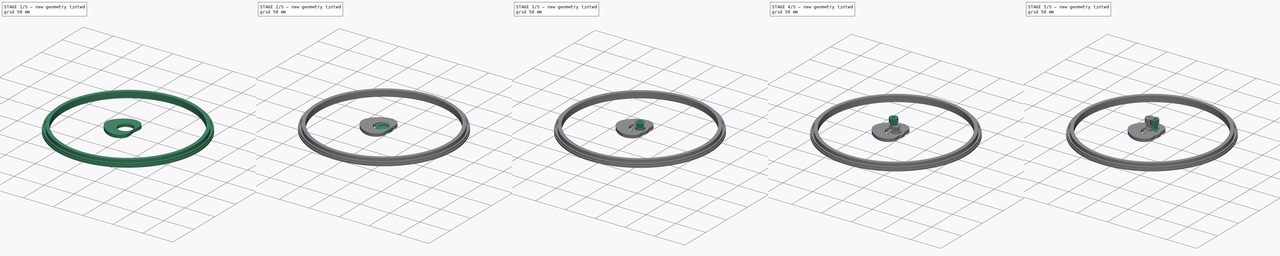
[diagram: build sequence overview — one tinted view per stage of 5, left to right]
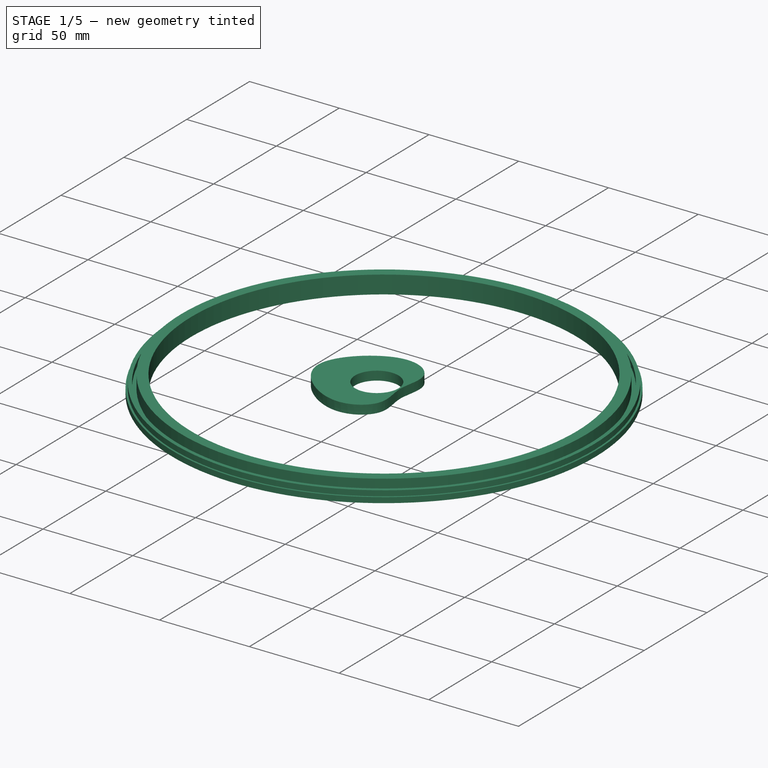
[diagram: stage 1 of 5 — iso view after this stage's code; geometry added in this stage tinted green]
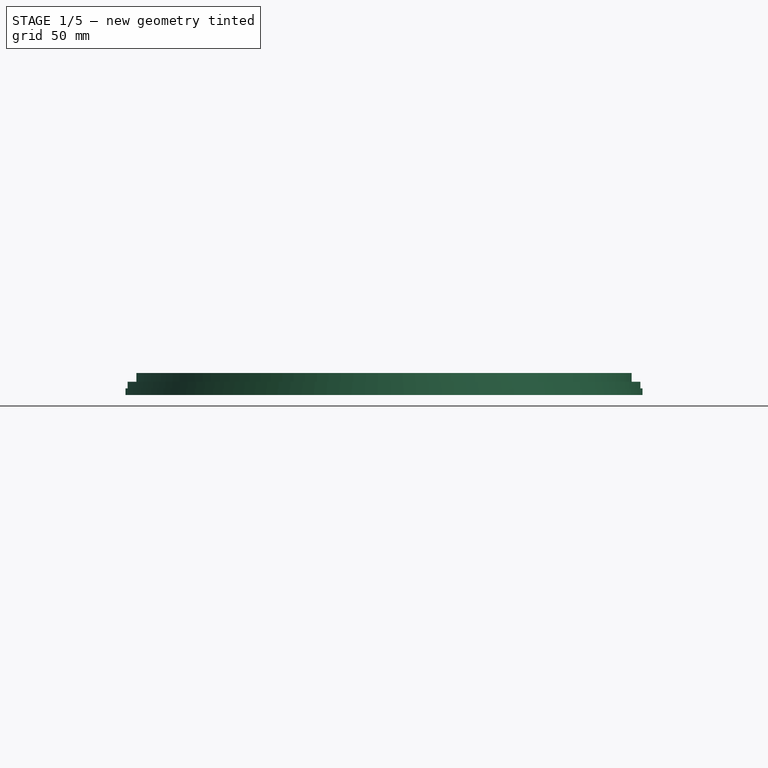
[diagram: stage 1 of 5 — front view after this stage's code; geometry added in this stage tinted green]
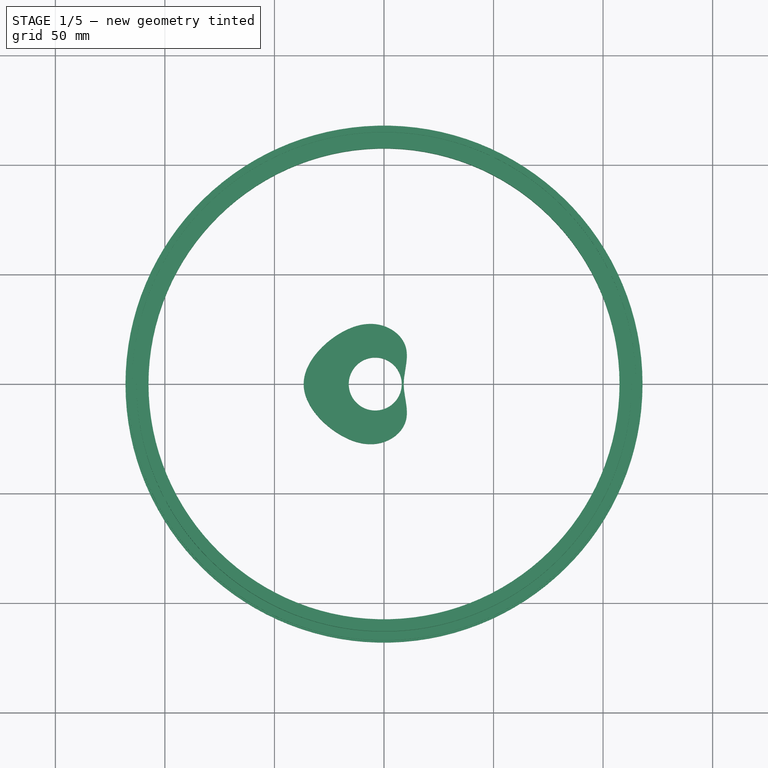
[diagram: stage 1 of 5 — top view after this stage's code; geometry added in this stage tinted green]
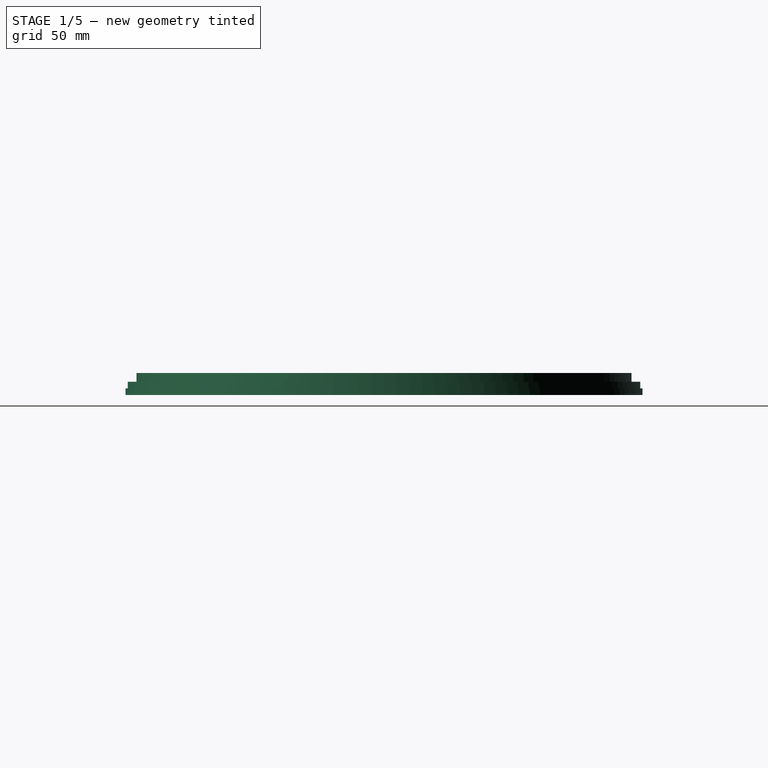
[diagram: stage 1 of 5 — right view after this stage's code; geometry added in this stage tinted green]
FCSTD DOCUMENT  (FreeCAD 0.19R)
Label: quad
License: All rights reserved
LicenseURL: http://en.wikipedia.org/wiki/All_rights_reserved
objects: Sketcher::SketchObject×26, PartDesign::Body×18, PartDesign::Pad×17, App::Part×7, PartDesign::Revolution×6, Part::Cut×6, PartDesign::Chamfer×4, PartDesign::FeatureBase×3, PartDesign::ShapeBinder×3, PartDesign::Pocket×2, PartDesign::FeaturePython×2, Part::FeaturePython×1, PartDesign::Hole×1
note: 119 computed .brp shape members not serialized (recipe doc carries the construction recipe); baked Part::Feature solids carry a one-line shape summary decoded from their .brp

FEATURE [PartDesign::Body] Body053  label="central_sep002"
  Group = -> [Pad057,Sketch075]
  Origin = -> Origin080
  Placement = pos=(0,0,-11.5) rot=(0,0,1;0rad)
  Tip = -> Pad057
FEATURE [Sketcher::SketchObject] Sketch076
  FullyConstrained = true
  MapMode = 5
  Support = -> [XY_Plane083]
  sketch-geometry (2):
    g0: Circle CenterX=0 CenterY=0 CenterZ=0 NormalX=0 NormalY=0 NormalZ=1 AngleXU=0 Radius=107.5
    g1: Circle CenterX=0 CenterY=0 CenterZ=0 NormalX=0 NormalY=0 NormalZ=1 AngleXU=0 Radius=118
  constraints (4):
    c: Coincident(g0,g-1)
    c: Diameter(g0) = 215  'dia_int'
    c: Coincident(g1,g0)
    c: Diameter(g1) = 236  'dia_ext'
FEATURE [Sketcher::SketchObject] Sketch077
  FullyConstrained = true
  MapMode = 5
  Support = -> [XY_Plane079]
  sketch-geometry (2):
    g0: Circle CenterX=0 CenterY=0 CenterZ=0 NormalX=0 NormalY=0 NormalZ=1 AngleXU=0 Radius=107.5
    g1: Circle CenterX=0 CenterY=0 CenterZ=0 NormalX=0 NormalY=0 NormalZ=1 AngleXU=0 Radius=113
  constraints (4):
    c: Coincident(g0,g-1)
    c: Diameter(g0) = 215  'dia_int'
    c: Coincident(g1,g0)
    c: Diameter(g1) = 226  'dia_ext'
FEATURE [PartDesign::Pad] Pad058  label="cyl_low009"
  Direction = (1,1,1)
  Length = 10
  Length2 = 100
  Profile = -> Sketch077
  Type = 0
FEATURE [PartDesign::Body] Body055  label="upper_rail002"
  Group = -> [Pad058,Sketch077]
  Origin = -> Origin078
  Placement = pos=(0,0,-28) rot=(0,0,1;0rad)
  Tip = -> Pad058
FEATURE [Sketcher::SketchObject] Sketch078
  FullyConstrained = true
  MapMode = 5
  Support = -> [XY_Plane082]
  sketch-geometry (2):
    g0: Circle CenterX=0 CenterY=0 CenterZ=0 NormalX=0 NormalY=0 NormalZ=1 AngleXU=0 Radius=115
    g1: Circle CenterX=0 CenterY=0 CenterZ=0 NormalX=0 NormalY=0 NormalZ=1 AngleXU=0 Radius=117
  constraints (4):
    c: Coincident(g0,g-1)
    c: Diameter(g0) = 230  'dia_int'
    c: Coincident(g1,g0)
    c: Diameter(g1) = 234  'dia_ext'
FEATURE [PartDesign::Pad] Pad059  label="cyl_low010"
  Direction = (1,1,1)
  Length = 6
  Length2 = 100
  Profile = -> Sketch078
  Type = 0
FEATURE [PartDesign::Body] Body052  label="lower_rail002"
  Group = -> [Pad059,Sketch078]
  Origin = -> Origin079
  Placement = pos=(0,0,-17) rot=(0,0,1;0rad)
  Tip = -> Pad059
FEATURE [PartDesign::Pad] Pad060  label="cyl_low011"
  Direction = (1,1,1)
  Length = 1.5
  Length2 = 100
  Profile = -> Sketch076
  Type = 0
FEATURE [PartDesign::Body] Body054  label="upper_sep002"
  Group = -> [Pad060,Sketch076]
  Origin = -> Origin081
  Placement = pos=(0,0,-18.5) rot=(0,0,1;0rad)
  Tip = -> Pad060
FEATURE [Sketcher::SketchObject] Sketch083
  FullyConstrained = true
  MapMode = 5
  Support = -> [XY_Plane084]
  sketch-geometry (2):
    g0: Circle CenterX=0 CenterY=0 CenterZ=0 NormalX=0 NormalY=0 NormalZ=1 AngleXU=0 Radius=107.5
    g1: Circle CenterX=0 CenterY=0 CenterZ=0 NormalX=0 NormalY=0 NormalZ=1 AngleXU=0 Radius=118
  constraints (4):
    c: Coincident(g0,g-1)
    c: Diameter(g0) = 215  'dia_int'
    c: Coincident(g1,g0)
    c: Diameter(g1) = 236  'dia_ext'
FEATURE [PartDesign::Pad] Pad062  label="cyl_low012"
  Direction = (1,1,1)
  Length = 3
  Length2 = 100
  Profile = -> Sketch083
  Type = 0
FEATURE [PartDesign::Body] Body057  label="upper_sep003"
  Group = -> [Pad062,Sketch083]
  Origin = -> Origin082
  Placement = pos=(0,0,-30) rot=(0,0,1;0rad)
  Tip = -> Pad062
FEATURE [App::Part] Part018  label="upper_base"
  Group = -> [Body055,Body053,Body054,Body052,Body057]
  Origin = -> Origin077
  Placement = pos=(123,0,0) rot=(1,0,0;3.14159rad)
FEATURE [PartDesign::ShapeBinder] CopyPad055
  Placement = pos=(0,0,5) rot=(0,0,1;0rad)
  TraceSupport = false
FEATURE [PartDesign::ShapeBinder] CopyPad056
  Placement = pos=(0,0,5) rot=(0,0,1;0rad)
  TraceSupport = false
FEATURE [Sketcher::SketchObject] Sketch085
  FullyConstrained = true
  MapMode = 5
  Placement = pos=(0,0,5) rot=(0,0,1;0rad)
  Support = -> [CopyPad056]
  sketch-geometry (12):
    g0-g5: Circle x6 (B-spline internal-alignment scaffolding for g6; pole/knot coordinates omitted)
    g6: BSplineCurve PolesCount=6 KnotsCount=7 Degree=3 IsPeriodic=1
    g7-g10: GeomPoint x4 (B-spline internal-alignment scaffolding for g6; pole/knot coordinates omitted)
    g11: Circle CenterX=-4 CenterY=0 CenterZ=0 NormalX=0 NormalY=0 NormalZ=1 AngleXU=0 Radius=12.1
  constraints (21):
    c: PointOnObject(g0,g-1)
    c: Weight(g0) = 1
    c: Equal(g0,g1)
    c: Equal(g0,g2)
    c: Equal(g0,g3)
    c: PointOnObject(g3,g-1)
    c: Equal(g0,g4)
    c: Equal(g0,g5)
    c: InternalAlignment(g0-g5 -> g6) x6
    c: InternalAlignment(g7-g10 -> g6) x4
    c: DistanceX(g0,g-1) = 50
    c: PointOnObject(g11,g-1)
    c: Radius(g11) = 12.1  'dia_int'
    c: DistanceX(g-1,g3) = 6
    c: Symmetric(g2,g4,g-1)
    c: DistanceX(g1,g2) = 25
    c: DistanceX(g0,g1) = 40
    c: Symmetric(g5,g1,g-1)
    c: DistanceY(g1,g0) = 35
    c: DistanceX(g11,g-1) = 4
    c: DistanceY(g2,g4) = 38
FEATURE [PartDesign::Pad] Pad063
  Direction = (1,1,1)
  Length = 5
  Length2 = 100
  Placement = pos=(0,0,5) rot=(0,0,1;0rad)
  Profile = -> Sketch085
  Type = 0
FEATURE [PartDesign::FeatureBase] BaseFeature001
  BaseFeature = -> Pad063
FEATURE [PartDesign::Body] Body  label="upper_pad"
  BaseFeature = -> Pad063
  Group = -> [BaseFeature001]
  Origin = -> Origin
  Placement = pos=(0,0,20) rot=(0,0,1;0rad)
  Tip = -> BaseFeature001
FEATURE [PartDesign::Body] PocketBody
  Origin = -> Origin084
FEATURE [PartDesign::Body] Body058
  Origin = -> Origin085
FEATURE [App::Part] Part
  Group = -> [PocketBody,Body058]
  Origin = -> Origin083
FEATURE [PartDesign::ShapeBinder] CopyPad057
  Placement = pos=(0,0,5) rot=(0,0,1;0rad)
  TraceSupport = false
FEATURE [Sketcher::SketchObject] Sketch086
  FullyConstrained = true
  MapMode = 5
  Placement = pos=(0,0,5) rot=(0,0,1;0rad)
  Support = -> [CopyPad057]
  sketch-geometry (12):
    g0-g5: Circle x6 (B-spline internal-alignment scaffolding for g6; pole/knot coordinates omitted)
    g6: BSplineCurve PolesCount=6 KnotsCount=7 Degree=3 IsPeriodic=1
    g7-g10: GeomPoint x4 (B-spline internal-alignment scaffolding for g6; pole/knot coordinates omitted)
    g11: Circle CenterX=-4 CenterY=0 CenterZ=0 NormalX=0 NormalY=0 NormalZ=1 AngleXU=0 Radius=12.1
  constraints (21):
    c: PointOnObject(g0,g-1)
    c: Weight(g0) = 1
    c: Equal(g0,g1)
    c: Equal(g0,g2)
    c: Equal(g0,g3)
    c: PointOnObject(g3,g-1)
    c: Equal(g0,g4)
    c: Equal(g0,g5)
    c: InternalAlignment(g0-g5 -> g6) x6
    c: InternalAlignment(g7-g10 -> g6) x4
    c: DistanceX(g0,g-1) = 50
    c: PointOnObject(g11,g-1)
    c: Radius(g11) = 12.1  'dia_int'
    c: DistanceX(g-1,g3) = 6
    c: Symmetric(g2,g4,g-1)
    c: DistanceX(g1,g2) = 25
    c: DistanceX(g0,g1) = 40
    c: Symmetric(g5,g1,g-1)
    c: DistanceY(g1,g0) = 35
    c: DistanceX(g11,g-1) = 4
    c: DistanceY(g2,g4) = 38
FEATURE [PartDesign::Pad] Pad064
  Direction = (1,1,1)
  Length = 5
  Length2 = 100
  Placement = pos=(0,0,5) rot=(0,0,1;0rad)
  Profile = -> Sketch086
  Type = 0
FEATURE [PartDesign::FeatureBase] BaseFeature002
  BaseFeature = -> Pad064
FEATURE [PartDesign::Body] Body059  label="lower_pad"
  BaseFeature = -> Pad064
  Group = -> [BaseFeature002]
  Origin = -> Origin086
  Placement = pos=(0,0,-25) rot=(0,0,1;0rad)
  Tip = -> BaseFeature002
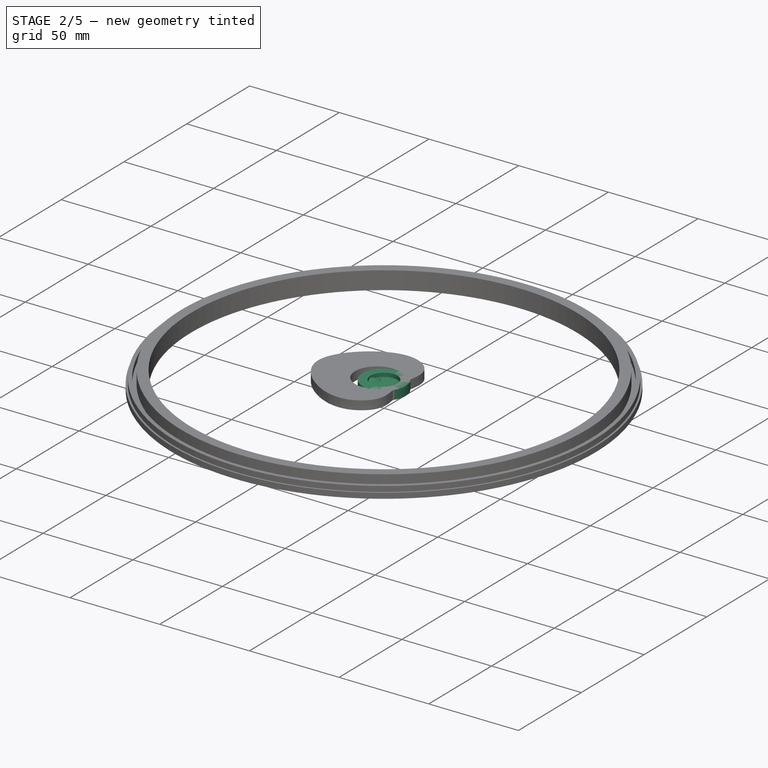
[diagram: stage 2 of 5 — iso view after this stage's code; geometry added in this stage tinted green]
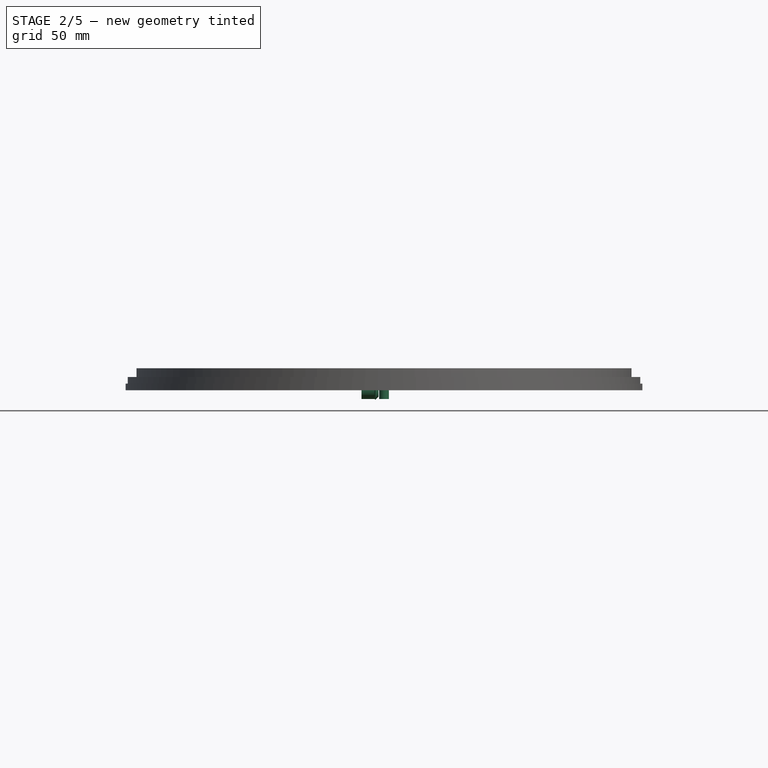
[diagram: stage 2 of 5 — front view after this stage's code; geometry added in this stage tinted green]
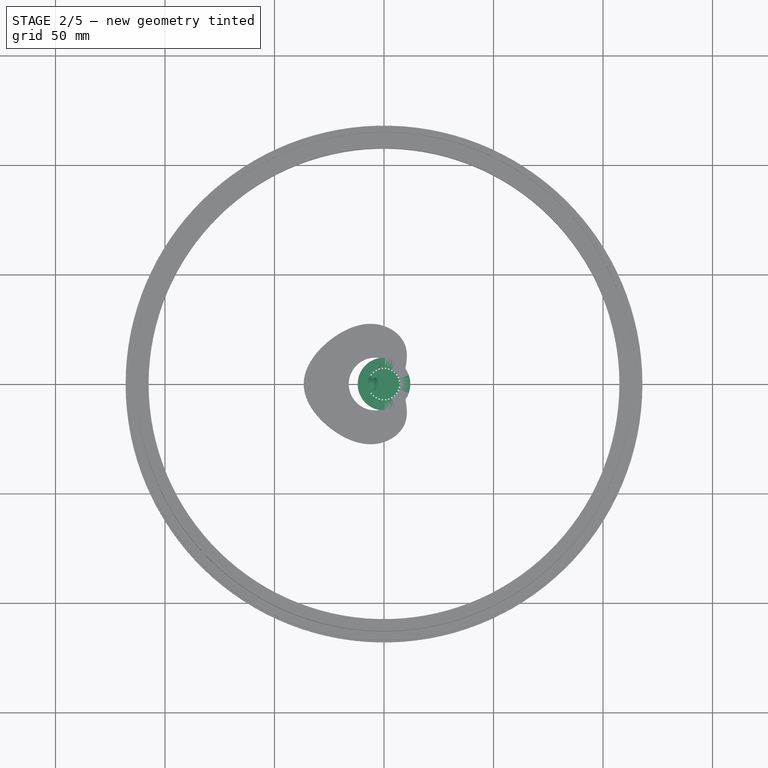
[diagram: stage 2 of 5 — top view after this stage's code; geometry added in this stage tinted green]
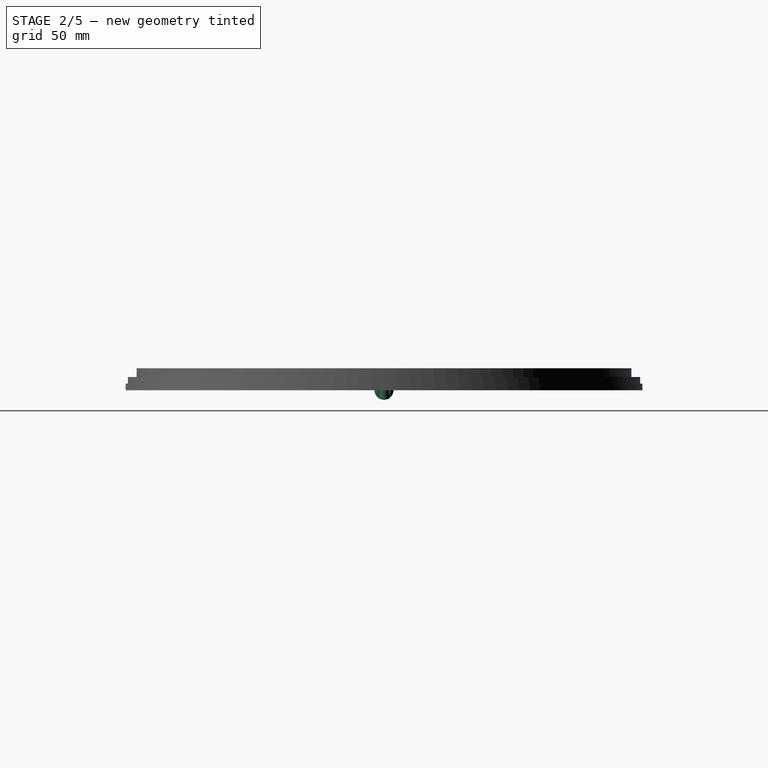
[diagram: stage 2 of 5 — right view after this stage's code; geometry added in this stage tinted green]
FEATURE [PartDesign::Body] Body046  label="bevel_x001"
  Group = -> [Sketch069,Revolution005]
  Origin = -> Origin069
  Tip = -> Revolution005
FEATURE [Sketcher::SketchObject] Sketch070
  FullyConstrained = true
  MapMode = 5
  Support = -> [XY_Plane071]
  sketch-geometry (7):
    g0: LineSegment StartX=-10.2642 StartY=4 StartZ=0 EndX=-4.26421 EndY=4 EndZ=0
    g1: LineSegment StartX=-4.26421 StartY=4 StartZ=0 EndX=-3.91421 EndY=4.35 EndZ=0
    g2: LineSegment StartX=-3.91421 StartY=4.35 StartZ=0 EndX=-2.5 EndY=2.93579 EndZ=0
    g3: LineSegment StartX=-2.5 StartY=2.93579 StartZ=0 EndX=-2.85 EndY=2.58579 EndZ=0
    g4: LineSegment StartX=-2.85 StartY=2.58579 StartZ=0 EndX=-2.85 EndY=1.5 EndZ=0
    g5: LineSegment StartX=-2.85 StartY=1.5 StartZ=0 EndX=-10.2642 EndY=1.5 EndZ=0
    g6: LineSegment StartX=-10.2642 StartY=1.5 StartZ=0 EndX=-10.2642 EndY=4 EndZ=0
  constraints (21):
    c: Horizontal(g0)
    c: Coincident(g0,g1)
    c: Coincident(g1,g2)
    c: Coincident(g2,g3)
    c: Coincident(g3,g4)
    c: Vertical(g4)
    c: Coincident(g4,g5)
    c: Horizontal(g5)
    c: Coincident(g5,g6)
    c: Coincident(g6,g0)
    c: Vertical(g6)
    c: DistanceX(g0,g0) = 6  'Lm'
    c: Parallel(g3,g1)
    c: Distance(g2) = 2  'F'
    c: Angle(g1,g0) = 2.35619
    c: DistanceY(g-1,g4) = 1.5  'bore'
    c: DistanceY(g-1,g0) = 4  'rm'
    c: DistanceY(g-1,g1) = 4.35
    c: Perpendicular(g1,g2)
    c: DistanceX(g2,g-1) = 2.5
    c: Equal(g3,g1)
FEATURE [PartDesign::Revolution] Revolution006
  Angle = 360
  Axis = (1,0,0)
  Base = (0,0,0)
  Profile = -> Sketch070
  ReferenceAxis = -> X_Axis070
FEATURE [PartDesign::Body] Body047  label="bevel_z001"
  Group = -> [Sketch070,Revolution006]
  Origin = -> Origin070
  Placement = pos=(0,0,0) rot=(0,0,1;1.5708rad)
  Tip = -> Revolution006
FEATURE [App::Part] Part016  label="bevel_gears001"
  Group = -> [Body046,Body047]
  Origin = -> Origin067
  Placement = pos=(-14.5,0,0) rot=(1,0,0;-1.5708rad)
FEATURE [PartDesign::FeaturePython] InvoluteGear002  # WARN: FeaturePython — macro-defined, semantics opaque (R4)
  AttacherType = Attacher::AttachEngine3D
  Placement = pos=(0,0,0) rot=(0,0,1;0.10472rad)
  angular_backlash = 0
  backlash = 0
  beta = 0
  clearance = 0.25
  da = 16
  df = 13.75
  double_helix = false
  dw = 15
  head = 0
  head_fillet = 0
  height = 3
  module = 0.5
  numpoints = 6
  pressure_angle = 20
  properties_from_tool = false
  reversed_backlash = false
  root_fillet = 0
  shift = 0
  simple = false
  teeth = 30
  transverse_pitch = 1.5708
  undercut = false
  version = 0.0.4
  expr: dw = teeth * module
  expr: angular_backlash = backlash / dw * 360° / pi
FEATURE [PartDesign::Body] Body049  label="gear_30teeths"
  Group = -> [InvoluteGear002]
  Origin = -> Origin072
  Placement = pos=(-14.5,0,7) rot=(0,0,1;0rad)
  Tip = -> InvoluteGear002
FEATURE [App::Part] Part017  label="transmission_altitude"
  Group = -> [Part016,Sketch064,Revolution004,Sketch065,Pocket001,Sketch066,Pad051,Cut003,Sketch067,Pad052,Cut004,Chamfer002,Chamfer003,Sketch068,Pad053,Cut005,Body049]
  Origin = -> Origin068
  Placement = pos=(0,0,0) rot=(1,0,0;3.14159rad)
FEATURE [Sketcher::SketchObject] Sketch073
  FullyConstrained = true
  MapMode = 5
  Support = -> [XY_Plane075]
  sketch-geometry (2):
    g0: Circle CenterX=0 CenterY=0 CenterZ=0 NormalX=0 NormalY=0 NormalZ=1 AngleXU=0 Radius=12
    g1: Circle CenterX=0 CenterY=0 CenterZ=0 NormalX=0 NormalY=0 NormalZ=1 AngleXU=0 Radius=7.5
  constraints (4):
    c: Coincident(g0,g-1)
    c: Coincident(g1,g0)
    c: Diameter(g1) = 15  'dia_int·'
    c: Diameter(g0) = 24  'dia_ext'
FEATURE [PartDesign::Pad] Pad055
  Direction = (1,1,1)
  Length = 5
  Length2 = 100
  Profile = -> Sketch073
  Type = 0
FEATURE [PartDesign::Body] Body050  label="roulement_15_24_5"
  Group = -> [Sketch073,Pad055]
  Origin = -> Origin073
  Placement = pos=(-4,0,20.1) rot=(0,0,1;0rad)
  Tip = -> Pad055
FEATURE [Part::FeaturePython] InvoluteGear  # WARN: FeaturePython — macro-defined, semantics opaque (R4)
  AttacherType = Attacher::AttachEngine3D
  angular_backlash = 0
  backlash = 0
  beta = 0
  clearance = 0.25
  da = 7
  df = 4.75
  double_helix = false
  dw = 6
  head = 0
  head_fillet = 0
  height = 3
  module = 0.5
  numpoints = 6
  pressure_angle = 20
  properties_from_tool = false
  reversed_backlash = false
  root_fillet = 0
  shift = 0
  simple = false
  teeth = 12
  transverse_pitch = 1.5708
  undercut = false
  version = 0.0.4
  expr: dw = teeth * module
  expr: angular_backlash = backlash / dw * 360° / pi
FEATURE [PartDesign::FeatureBase] BaseFeature
  BaseFeature = -> InvoluteGear
FEATURE [Sketcher::SketchObject] Sketch071
  FullyConstrained = true
  MapMode = 5
  Placement = pos=(0,0,3) rot=(0,0,1;0rad)
  Support = -> [BaseFeature]
  sketch-geometry (1):
    g0: Circle CenterX=0 CenterY=0 CenterZ=0 NormalX=0 NormalY=0 NormalZ=1 AngleXU=0 Radius=2.25
  constraints (2):
    c: Coincident(g0,g-1)
    c: Diameter(g0) = 4.5  'phi_hub'
FEATURE [PartDesign::Pad] Pad054
  BaseFeature = -> BaseFeature
  Direction = (1,1,1)
  Length = 7
  Length2 = 100
  Profile = -> Sketch071
  Reversed = true
  Type = 0
FEATURE [Sketcher::SketchObject] Sketch072
  FullyConstrained = true
  MapMode = 5
  Placement = pos=(0,0,3) rot=(0,0,1;0rad)
  Support = -> [Pad054]
  sketch-geometry (1):
    g0: Circle CenterX=0 CenterY=0 CenterZ=0 NormalX=0 NormalY=0 NormalZ=1 AngleXU=0 Radius=1
  constraints (2):
    c: Coincident(g0,g-1)
    c: Diameter(g0) = 2
FEATURE [PartDesign::Hole] Hole
  BaseFeature = -> Pad054
  Depth = 25
  DepthType = 1
  Diameter = 2
  DrillForDepth = false
  DrillPoint = 0
  DrillPointAngle = 118
  HoleCutCountersinkAngle = 90
  HoleCutCustomValues = false
  HoleCutDepth = 0
  HoleCutDiameter = 6.1
  HoleCutType = 0
  ModelActualThread = false
  Profile = -> Sketch072
  Tapered = false
  TaperedAngle = 90
  ThreadAngle = 0
  ThreadClass = 0
  ThreadCutOffInner = 0
  ThreadCutOffOuter = 0
  ThreadDirection = 0
  ThreadFit = 0
  ThreadPitch = 0
  ThreadSize = 0
  ThreadType = 0
  Threaded = false
FEATURE [PartDesign::FeaturePython] InvoluteGear001  # WARN: FeaturePython — macro-defined, semantics opaque (R4)
  AttacherType = Attacher::AttachEngine3D
  BaseFeature = -> Hole
  angular_backlash = 0
  backlash = 0
  beta = 0
  clearance = 0.25
  da = 7
  df = 4.75
  double_helix = false
  dw = 6
  head = 0
  head_fillet = 0
  height = 3
  module = 0.5
  numpoints = 6
  pressure_angle = 20
  properties_from_tool = false
  reversed_backlash = false
  root_fillet = 0
  shift = 0
  simple = false
  teeth = 12
  transverse_pitch = 1.5708
  undercut = false
  version = 0.0.4
  expr: dw = teeth * module
  expr: angular_backlash = backlash / dw * 360° / pi
FEATURE [PartDesign::Body] Body048  label="gear_12_teeth_M05"
  BaseFeature = -> InvoluteGear
  Group = -> [BaseFeature,Sketch071,Pad054,Sketch072,Hole,InvoluteGear001]
  Origin = -> Origin071
  Placement = pos=(-4,0,-10) rot=(0,0,1;0rad)
  Tip = -> InvoluteGear001
FEATURE [App::Part] Part015  label="quad"
  Group = -> [Part010,Body045,Body044,Part017,InvoluteGear,Body048,Body050]
  Origin = -> Origin066
FEATURE [Sketcher::SketchObject] Sketch075
  FullyConstrained = true
  MapMode = 5
  Support = -> [XY_Plane080]
  sketch-geometry (2):
    g0: Circle CenterX=0 CenterY=0 CenterZ=0 NormalX=0 NormalY=0 NormalZ=1 AngleXU=0 Radius=115
    g1: Circle CenterX=0 CenterY=0 CenterZ=0 NormalX=0 NormalY=0 NormalZ=1 AngleXU=0 Radius=118
  constraints (4):
    c: Coincident(g0,g-1)
    c: Diameter(g0) = 230  'dia_int'
    c: Coincident(g1,g0)
    c: Diameter(g1) = 236  'dia_ext'
FEATURE [PartDesign::Pad] Pad057  label="cyl_low008"
  Direction = (1,1,1)
  Length = 1.5
  Length2 = 100
  Profile = -> Sketch075
  Type = 0
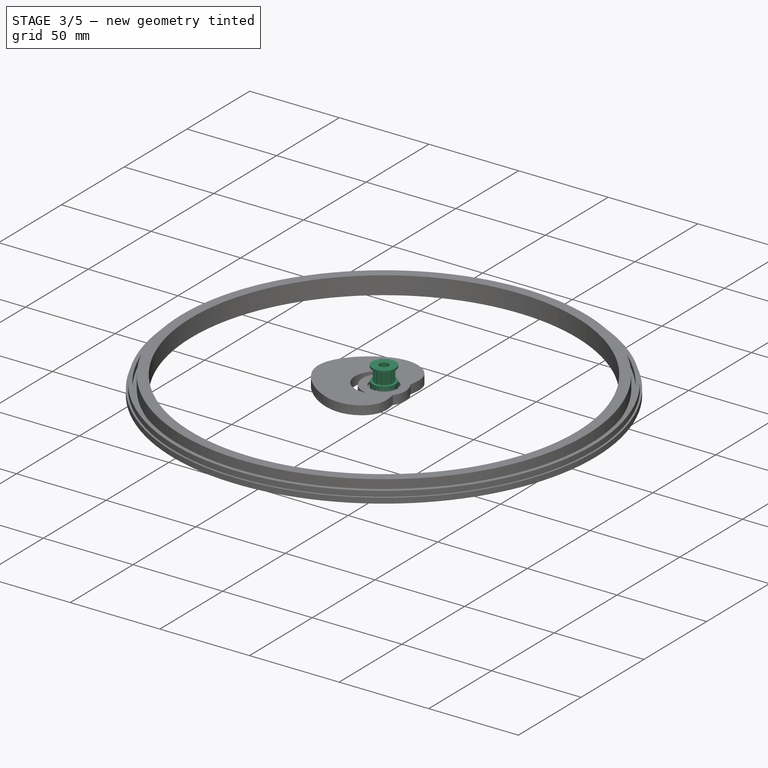
[diagram: stage 3 of 5 — iso view after this stage's code; geometry added in this stage tinted green]
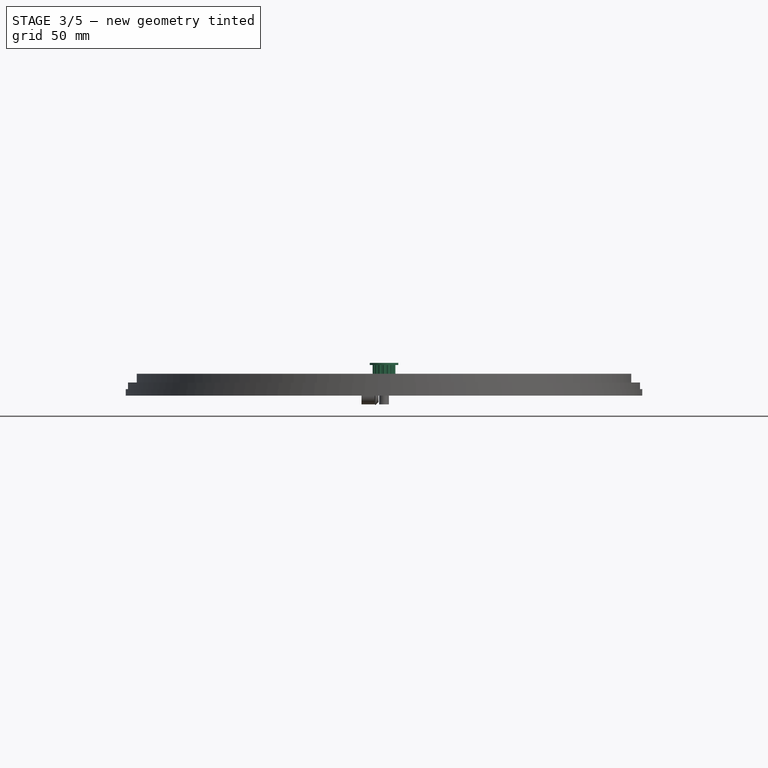
[diagram: stage 3 of 5 — front view after this stage's code; geometry added in this stage tinted green]
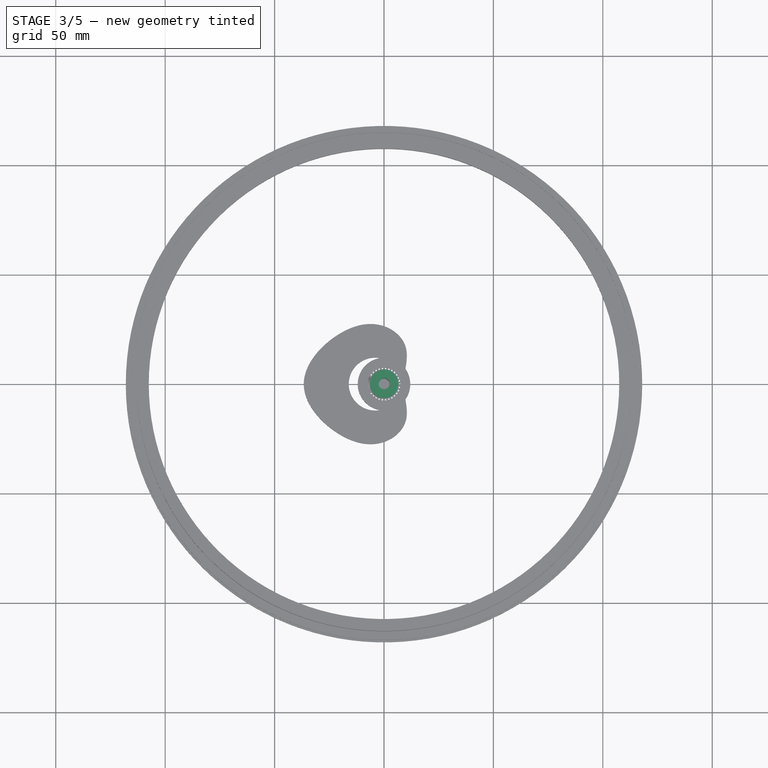
[diagram: stage 3 of 5 — top view after this stage's code; geometry added in this stage tinted green]
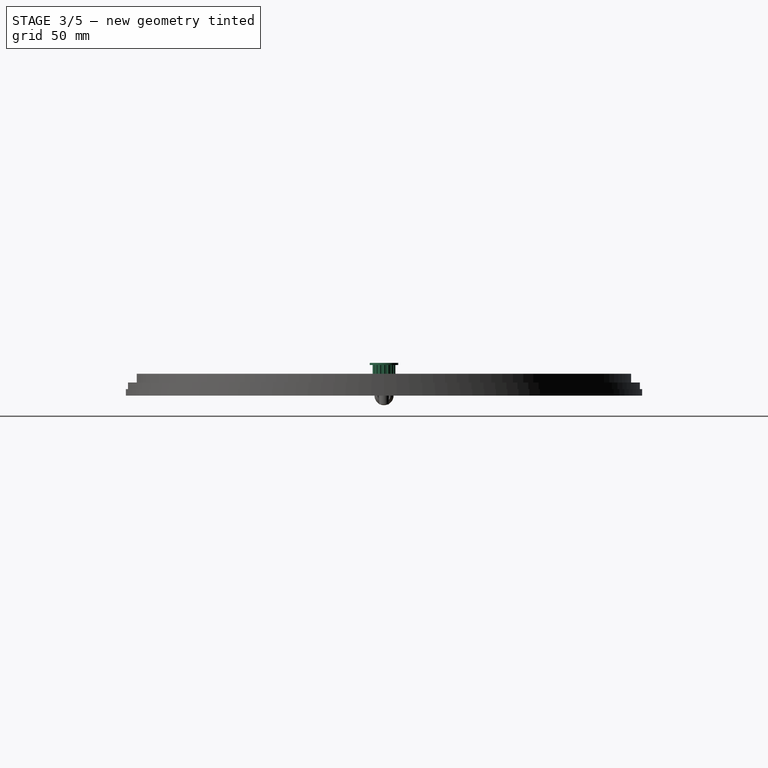
[diagram: stage 3 of 5 — right view after this stage's code; geometry added in this stage tinted green]
FEATURE [PartDesign::Body] Body005  label="bevel_z"
  Group = -> [Sketch007,Revolution003]
  Origin = -> Origin007
  Placement = pos=(0,0,0) rot=(0,0,1;1.5708rad)
  Tip = -> Revolution003
FEATURE [App::Part] Part009  label="bevel_gears"
  Group = -> [Body004,Body005]
  Origin = -> Origin056
  Placement = pos=(4,0,0) rot=(1,0,0;-1.5708rad)
FEATURE [App::Part] Part010  label="transmission_latitude"
  Group = -> [Part009,Sketch062,Revolution,Sketch001,Pocket,Sketch002,Pad049,Cut,Sketch003,Pad001,Cut001,Chamfer,Chamfer001,Sketch004,Pad002,Cut002]
  Origin = -> Origin057
  Placement = pos=(0,0,0) rot=(0,0,1;3.14159rad)
FEATURE [Sketcher::SketchObject] Sketch064
  FullyConstrained = false
  MapMode = 5
  Placement = pos=(0,0,0) rot=(1,0,0;1.5708rad)
  sketch-geometry (8):
    g0: LineSegment StartX=0 StartY=0 StartZ=0 EndX=6.5 EndY=0 EndZ=0
    g1: LineSegment StartX=6.5 StartY=0 StartZ=0 EndX=6.5 EndY=7 EndZ=0
    g2: LineSegment StartX=4.7 StartY=14 StartZ=0 EndX=4.7 EndY=7 EndZ=0
    g3: LineSegment StartX=4.7 StartY=7 StartZ=0 EndX=6.5 EndY=7 EndZ=0
    g4: LineSegment StartX=0 StartY=15 StartZ=0 EndX=6.5 EndY=15 EndZ=0
    g5: LineSegment StartX=6.5 StartY=15 StartZ=0 EndX=6.5 EndY=14 EndZ=0
    g6: LineSegment StartX=6.5 StartY=14 StartZ=0 EndX=4.7 EndY=14 EndZ=0
    g7: LineSegment StartX=0 StartY=15 StartZ=0 EndX=0 EndY=0 EndZ=0
  constraints (15):
    c: PointOnObject(g0,g-1)
    c: Horizontal(g0)
    c: Coincident(g1,g0)
    c: Vertical(g1)
    c: Vertical(g2)
    c: Coincident(g3,g2)
    c: Coincident(g3,g1)
    c: Horizontal(g4)
    c: Coincident(g4,g5)
    c: Vertical(g5)
    c: Coincident(g5,g6)
    c: Horizontal(g6)
    c: Vertical(g7)
    c: PointOnObject(g7,g4)
    c: Coincident(g4,g7)
FEATURE [PartDesign::Revolution] Revolution004
  AllowMultiFace = false
  Angle = 360
  Axis = (0,0,1)
  Base = (0,0,0)
  Placement = pos=(0,0,0) rot=(1,0,0;1.5708rad)
  Profile = -> Sketch064
  ReferenceAxis = -> Sketch064 [V_Axis]
  Reversed = true
FEATURE [Sketcher::SketchObject] Sketch065
  FullyConstrained = false
  MapMode = 5
  Placement = pos=(0,3.3e-15,15) rot=(0,0,1;3.14159rad)
  Support = -> [Revolution004]
  sketch-geometry (1):
    g0: Circle CenterX=0 CenterY=0 CenterZ=0 NormalX=0 NormalY=0 NormalZ=1 AngleXU=0 Radius=2.5
  constraints (2):
    c: Coincident(g0,g-1)
    c: Radius(g0) = 2.5
FEATURE [PartDesign::Pocket] Pocket001
  AllowMultiFace = false
  Length = 15
  Length2 = 100
  Placement = pos=(0,0,0) rot=(1,0,0;1.5708rad)
  Profile = -> Sketch065
  Type = 0
FEATURE [Sketcher::SketchObject] Sketch066
  FullyConstrained = false
  MapMode = 5
  Placement = pos=(0,-7,3.5) rot=(1,0,0;1.5708rad)
  sketch-geometry (1):
    g0: Circle CenterX=0 CenterY=0 CenterZ=0 NormalX=0 NormalY=0 NormalZ=1 AngleXU=0 Radius=1.5
  constraints (2):
    c: Coincident(g0,g-1)
    c: Radius(g0) = 1.5
FEATURE [PartDesign::Pad] Pad051
  AllowMultiFace = false
  Direction = (1,1,1)
  Length = 8
  Length2 = 100
  Placement = pos=(0,-7,3.5) rot=(1,0,0;1.5708rad)
  Profile = -> Sketch066
  Reversed = true
  Type = 0
FEATURE [Part::Cut] Cut003
  Base = -> Pocket001
  Tool = -> Pad051
FEATURE [Sketcher::SketchObject] Sketch067
  FullyConstrained = false
  MapMode = 5
  Placement = pos=(7,0,3.5) rot=(0.57735,0.57735,0.57735;2.0944rad)
  sketch-geometry (1):
    g0: Circle CenterX=0 CenterY=0 CenterZ=0 NormalX=0 NormalY=0 NormalZ=1 AngleXU=0 Radius=1.5
  constraints (2):
    c: Coincident(g0,g-1)
    c: Radius(g0) = 1.5
FEATURE [PartDesign::Pad] Pad052
  AllowMultiFace = false
  Direction = (1,1,1)
  Length = 8
  Length2 = 100
  Placement = pos=(7,0,3.5) rot=(0.57735,0.57735,0.57735;2.0944rad)
  Profile = -> Sketch067
  Reversed = true
  Type = 0
FEATURE [Part::Cut] Cut004
  Base = -> Cut003
  Tool = -> Pad052
FEATURE [Sketcher::SketchObject] Sketch068
  FullyConstrained = false
  MapMode = 5
  Placement = pos=(0,0,14) rot=(0,0,1;0rad)
  sketch-geometry (16):
    g0: Circle CenterX=0 CenterY=4.7 CenterZ=0 NormalX=0 NormalY=0 NormalZ=1 AngleXU=0 Radius=0.5
    g1: Circle CenterX=0 CenterY=-4.7 CenterZ=0 NormalX=0 NormalY=0 NormalZ=1 AngleXU=0 Radius=0.5
    g2: Circle CenterX=4.7 CenterY=0 CenterZ=0 NormalX=0 NormalY=0 NormalZ=1 AngleXU=0 Radius=0.5
    g3: Circle CenterX=-4.7 CenterY=0 CenterZ=0 NormalX=0 NormalY=0 NormalZ=1 AngleXU=0 Radius=0.5
    g4: Circle CenterX=-3.3234 CenterY=3.3234 CenterZ=0 NormalX=0 NormalY=0 NormalZ=1 AngleXU=0 Radius=0.5
    g5: Circle CenterX=3.3234 CenterY=3.3234 CenterZ=0 NormalX=0 NormalY=0 NormalZ=1 AngleXU=0 Radius=0.5
    g6: Circle CenterX=-3.3234 CenterY=-3.3234 CenterZ=0 NormalX=0 NormalY=0 NormalZ=1 AngleXU=0 Radius=0.5
    g7: Circle CenterX=3.3234 CenterY=-3.3234 CenterZ=0 NormalX=0 NormalY=0 NormalZ=1 AngleXU=0 Radius=0.5
    g8: Circle CenterX=-1.79861 CenterY=4.34223 CenterZ=0 NormalX=0 NormalY=0 NormalZ=1 AngleXU=0 Radius=0.5
    g9: Circle CenterX=1.79861 CenterY=4.34223 CenterZ=0 NormalX=0 NormalY=0 NormalZ=1 AngleXU=0 Radius=0.5
    g10: Circle CenterX=4.34223 CenterY=1.79861 CenterZ=0 NormalX=0 NormalY=0 NormalZ=1 AngleXU=0 Radius=0.5
    g11: Circle CenterX=4.34223 CenterY=-1.79861 CenterZ=0 NormalX=0 NormalY=0 NormalZ=1 AngleXU=0 Radius=0.5
    g12: Circle CenterX=1.79861 CenterY=-4.34223 CenterZ=0 NormalX=0 NormalY=0 NormalZ=1 AngleXU=0 Radius=0.5
    g13: Circle CenterX=-1.79861 CenterY=-4.34223 CenterZ=0 NormalX=0 NormalY=0 NormalZ=1 AngleXU=0 Radius=0.5
    g14: Circle CenterX=-4.34223 CenterY=-1.79861 CenterZ=0 NormalX=0 NormalY=0 NormalZ=1 AngleXU=0 Radius=0.5
    g15: Circle CenterX=-4.31471 CenterY=1.86367 CenterZ=0 NormalX=0 NormalY=0 NormalZ=1 AngleXU=0 Radius=0.5
  constraints (16):
    c: Radius(g0) = 0.5
    c: Equal(g0,g8)
    c: Equal(g8,g4)
    c: Equal(g4,g15)
    c: Equal(g15,g3)
    c: Equal(g3,g14)
    c: Equal(g14,g6)
    c: Equal(g6,g13)
    c: Equal(g13,g1)
    c: Equal(g1,g12)
    c: Equal(g12,g7)
    c: Equal(g7,g11)
    c: Equal(g11,g2)
    c: Equal(g2,g10)
    c: Equal(g10,g5)
    c: Equal(g5,g9)
FEATURE [PartDesign::Pad] Pad053
  AllowMultiFace = false
  Direction = (1,1,1)
  Length = 7
  Length2 = 100
  Placement = pos=(0,0,14) rot=(0,0,1;0rad)
  Profile = -> Sketch068
  Reversed = true
  Type = 0
FEATURE [Sketcher::SketchObject] Sketch069
  FullyConstrained = true
  MapMode = 5
  Support = -> [XY_Plane072]
  sketch-geometry (7):
    g0: LineSegment StartX=-10.2642 StartY=4 StartZ=0 EndX=-4.26421 EndY=4 EndZ=0
    g1: LineSegment StartX=-4.26421 StartY=4 StartZ=0 EndX=-3.91421 EndY=4.35 EndZ=0
    g2: LineSegment StartX=-3.91421 StartY=4.35 StartZ=0 EndX=-2.5 EndY=2.93579 EndZ=0
    g3: LineSegment StartX=-2.5 StartY=2.93579 StartZ=0 EndX=-2.85 EndY=2.58579 EndZ=0
    g4: LineSegment StartX=-2.85 StartY=2.58579 StartZ=0 EndX=-2.85 EndY=1.5 EndZ=0
    g5: LineSegment StartX=-2.85 StartY=1.5 StartZ=0 EndX=-10.2642 EndY=1.5 EndZ=0
    g6: LineSegment StartX=-10.2642 StartY=1.5 StartZ=0 EndX=-10.2642 EndY=4 EndZ=0
  constraints (21):
    c: Horizontal(g0)
    c: Coincident(g0,g1)
    c: Coincident(g1,g2)
    c: Coincident(g2,g3)
    c: Coincident(g3,g4)
    c: Vertical(g4)
    c: Coincident(g4,g5)
    c: Horizontal(g5)
    c: Coincident(g5,g6)
    c: Coincident(g6,g0)
    c: Vertical(g6)
    c: DistanceX(g0,g0) = 6  'Lm'
    c: Parallel(g3,g1)
    c: Distance(g2) = 2  'F'
    c: Angle(g1,g0) = 2.35619
    c: DistanceY(g-1,g4) = 1.5  'bore'
    c: DistanceY(g-1,g0) = 4  'rm'
    c: DistanceY(g-1,g1) = 4.35
    c: Perpendicular(g1,g2)
    c: DistanceX(g2,g-1) = 2.5
    c: Equal(g3,g1)
FEATURE [PartDesign::Revolution] Revolution005
  Angle = 360
  Axis = (1,0,0)
  Base = (0,0,0)
  Profile = -> Sketch069
  ReferenceAxis = -> X_Axis069
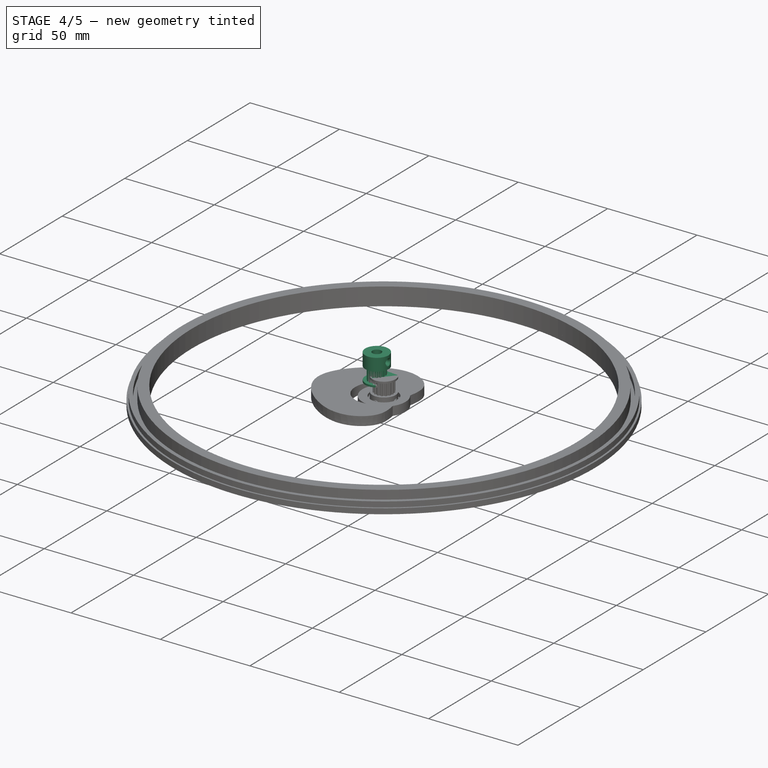
[diagram: stage 4 of 5 — iso view after this stage's code; geometry added in this stage tinted green]
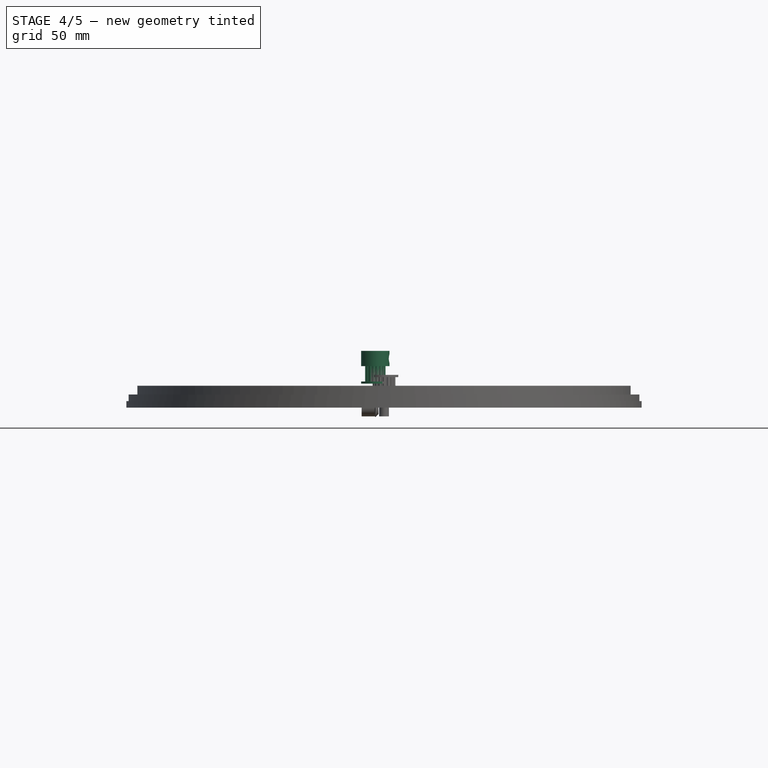
[diagram: stage 4 of 5 — front view after this stage's code; geometry added in this stage tinted green]
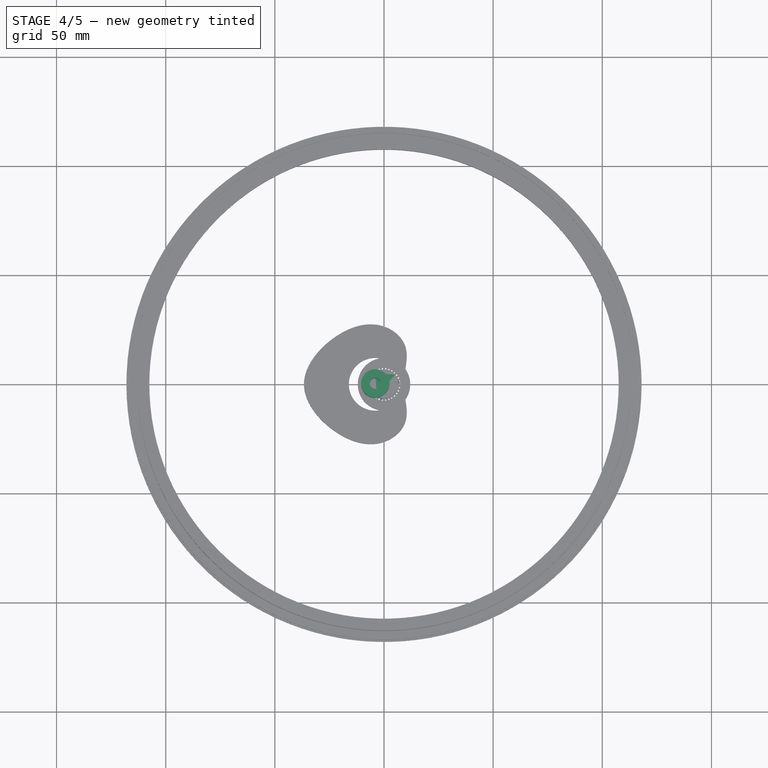
[diagram: stage 4 of 5 — top view after this stage's code; geometry added in this stage tinted green]
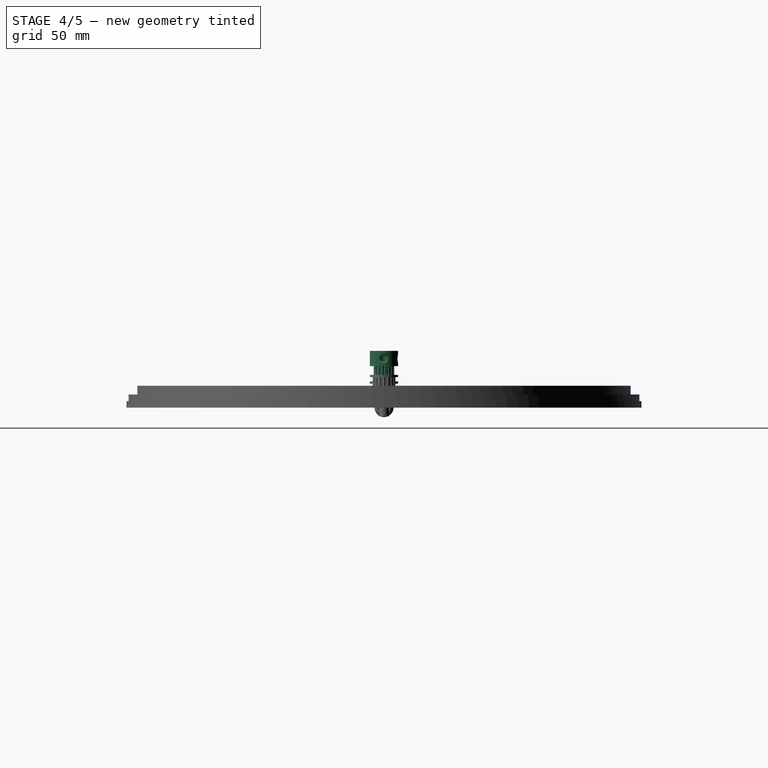
[diagram: stage 4 of 5 — right view after this stage's code; geometry added in this stage tinted green]
FEATURE [PartDesign::Body] Body045  label="rear_wheel"
  Group = -> [Sketch060,Pad047]
  Origin = -> Origin052
  Placement = pos=(4,-14,13.5) rot=(0,0,1;0rad)
  Tip = -> Pad047
FEATURE [Sketcher::SketchObject] Sketch062
  FullyConstrained = false
  MapMode = 5
  Placement = pos=(0,0,0) rot=(1,0,0;1.5708rad)
  sketch-geometry (8):
    g0: LineSegment StartX=0 StartY=0 StartZ=0 EndX=6.5 EndY=0 EndZ=0
    g1: LineSegment StartX=6.5 StartY=0 StartZ=0 EndX=6.5 EndY=7 EndZ=0
    g2: LineSegment StartX=4.7 StartY=14 StartZ=0 EndX=4.7 EndY=7 EndZ=0
    g3: LineSegment StartX=4.7 StartY=7 StartZ=0 EndX=6.5 EndY=7 EndZ=0
    g4: LineSegment StartX=0 StartY=15 StartZ=0 EndX=6.5 EndY=15 EndZ=0
    g5: LineSegment StartX=6.5 StartY=15 StartZ=0 EndX=6.5 EndY=14 EndZ=0
    g6: LineSegment StartX=6.5 StartY=14 StartZ=0 EndX=4.7 EndY=14 EndZ=0
    g7: LineSegment StartX=0 StartY=15 StartZ=0 EndX=0 EndY=0 EndZ=0
  constraints (15):
    c: PointOnObject(g0,g-1)
    c: Horizontal(g0)
    c: Coincident(g1,g0)
    c: Vertical(g1)
    c: Vertical(g2)
    c: Coincident(g3,g2)
    c: Coincident(g3,g1)
    c: Horizontal(g4)
    c: Coincident(g4,g5)
    c: Vertical(g5)
    c: Coincident(g5,g6)
    c: Horizontal(g6)
    c: Vertical(g7)
    c: PointOnObject(g7,g4)
    c: Coincident(g4,g7)
FEATURE [PartDesign::Revolution] Revolution
  AllowMultiFace = false
  Angle = 360
  Axis = (0,0,1)
  Base = (0,0,0)
  Placement = pos=(0,0,0) rot=(1,0,0;1.5708rad)
  Profile = -> Sketch062
  ReferenceAxis = -> Sketch062 [V_Axis]
  Reversed = true
FEATURE [Sketcher::SketchObject] Sketch002
  FullyConstrained = false
  MapMode = 5
  Placement = pos=(0,-7,3.5) rot=(1,0,0;1.5708rad)
  sketch-geometry (1):
    g0: Circle CenterX=0 CenterY=0 CenterZ=0 NormalX=0 NormalY=0 NormalZ=1 AngleXU=0 Radius=1.5
  constraints (2):
    c: Coincident(g0,g-1)
    c: Radius(g0) = 1.5
FEATURE [PartDesign::Pad] Pad049
  AllowMultiFace = false
  Direction = (1,1,1)
  Length = 8
  Length2 = 100
  Placement = pos=(0,-7,3.5) rot=(1,0,0;1.5708rad)
  Profile = -> Sketch002
  Reversed = true
  Type = 0
FEATURE [Sketcher::SketchObject] Sketch003
  FullyConstrained = false
  MapMode = 5
  Placement = pos=(7,0,3.5) rot=(0.57735,0.57735,0.57735;2.0944rad)
  sketch-geometry (1):
    g0: Circle CenterX=0 CenterY=0 CenterZ=0 NormalX=0 NormalY=0 NormalZ=1 AngleXU=0 Radius=1.5
  constraints (2):
    c: Coincident(g0,g-1)
    c: Radius(g0) = 1.5
FEATURE [PartDesign::Pad] Pad001
  AllowMultiFace = false
  Direction = (1,1,1)
  Length = 8
  Length2 = 100
  Placement = pos=(7,0,3.5) rot=(0.57735,0.57735,0.57735;2.0944rad)
  Profile = -> Sketch003
  Reversed = true
  Type = 0
FEATURE [Sketcher::SketchObject] Sketch004
  FullyConstrained = false
  MapMode = 5
  Placement = pos=(0,0,14) rot=(0,0,1;0rad)
  sketch-geometry (16):
    g0: Circle CenterX=0 CenterY=4.7 CenterZ=0 NormalX=0 NormalY=0 NormalZ=1 AngleXU=0 Radius=0.5
    g1: Circle CenterX=0 CenterY=-4.7 CenterZ=0 NormalX=0 NormalY=0 NormalZ=1 AngleXU=0 Radius=0.5
    g2: Circle CenterX=4.7 CenterY=0 CenterZ=0 NormalX=0 NormalY=0 NormalZ=1 AngleXU=0 Radius=0.5
    g3: Circle CenterX=-4.7 CenterY=0 CenterZ=0 NormalX=0 NormalY=0 NormalZ=1 AngleXU=0 Radius=0.5
    g4: Circle CenterX=-3.3234 CenterY=3.3234 CenterZ=0 NormalX=0 NormalY=0 NormalZ=1 AngleXU=0 Radius=0.5
    g5: Circle CenterX=3.3234 CenterY=3.3234 CenterZ=0 NormalX=0 NormalY=0 NormalZ=1 AngleXU=0 Radius=0.5
    g6: Circle CenterX=-3.3234 CenterY=-3.3234 CenterZ=0 NormalX=0 NormalY=0 NormalZ=1 AngleXU=0 Radius=0.5
    g7: Circle CenterX=3.3234 CenterY=-3.3234 CenterZ=0 NormalX=0 NormalY=0 NormalZ=1 AngleXU=0 Radius=0.5
    g8: Circle CenterX=-1.79861 CenterY=4.34223 CenterZ=0 NormalX=0 NormalY=0 NormalZ=1 AngleXU=0 Radius=0.5
    g9: Circle CenterX=1.79861 CenterY=4.34223 CenterZ=0 NormalX=0 NormalY=0 NormalZ=1 AngleXU=0 Radius=0.5
    g10: Circle CenterX=4.34223 CenterY=1.79861 CenterZ=0 NormalX=0 NormalY=0 NormalZ=1 AngleXU=0 Radius=0.5
    g11: Circle CenterX=4.34223 CenterY=-1.79861 CenterZ=0 NormalX=0 NormalY=0 NormalZ=1 AngleXU=0 Radius=0.5
    g12: Circle CenterX=1.79861 CenterY=-4.34223 CenterZ=0 NormalX=0 NormalY=0 NormalZ=1 AngleXU=0 Radius=0.5
    g13: Circle CenterX=-1.79861 CenterY=-4.34223 CenterZ=0 NormalX=0 NormalY=0 NormalZ=1 AngleXU=0 Radius=0.5
    g14: Circle CenterX=-4.34223 CenterY=-1.79861 CenterZ=0 NormalX=0 NormalY=0 NormalZ=1 AngleXU=0 Radius=0.5
    g15: Circle CenterX=-4.31471 CenterY=1.86367 CenterZ=0 NormalX=0 NormalY=0 NormalZ=1 AngleXU=0 Radius=0.5
  constraints (16):
    c: Radius(g0) = 0.5
    c: Equal(g0,g8)
    c: Equal(g8,g4)
    c: Equal(g4,g15)
    c: Equal(g15,g3)
    c: Equal(g3,g14)
    c: Equal(g14,g6)
    c: Equal(g6,g13)
    c: Equal(g13,g1)
    c: Equal(g1,g12)
    c: Equal(g12,g7)
    c: Equal(g7,g11)
    c: Equal(g11,g2)
    c: Equal(g2,g10)
    c: Equal(g10,g5)
    c: Equal(g5,g9)
FEATURE [PartDesign::Pad] Pad002
  AllowMultiFace = false
  Direction = (1,1,1)
  Length = 7
  Length2 = 100
  Placement = pos=(0,0,14) rot=(0,0,1;0rad)
  Profile = -> Sketch004
  Reversed = true
  Type = 0
FEATURE [Sketcher::SketchObject] Sketch006
  FullyConstrained = true
  MapMode = 5
  Support = -> [XY_Plane006]
  sketch-geometry (7):
    g0: LineSegment StartX=-10.2642 StartY=4 StartZ=0 EndX=-4.26421 EndY=4 EndZ=0
    g1: LineSegment StartX=-4.26421 StartY=4 StartZ=0 EndX=-3.91421 EndY=4.35 EndZ=0
    g2: LineSegment StartX=-3.91421 StartY=4.35 StartZ=0 EndX=-2.5 EndY=2.93579 EndZ=0
    g3: LineSegment StartX=-2.5 StartY=2.93579 StartZ=0 EndX=-2.85 EndY=2.58579 EndZ=0
    g4: LineSegment StartX=-2.85 StartY=2.58579 StartZ=0 EndX=-2.85 EndY=1.5 EndZ=0
    g5: LineSegment StartX=-2.85 StartY=1.5 StartZ=0 EndX=-10.2642 EndY=1.5 EndZ=0
    g6: LineSegment StartX=-10.2642 StartY=1.5 StartZ=0 EndX=-10.2642 EndY=4 EndZ=0
  constraints (21):
    c: Horizontal(g0)
    c: Coincident(g0,g1)
    c: Coincident(g1,g2)
    c: Coincident(g2,g3)
    c: Coincident(g3,g4)
    c: Vertical(g4)
    c: Coincident(g4,g5)
    c: Horizontal(g5)
    c: Coincident(g5,g6)
    c: Coincident(g6,g0)
    c: Vertical(g6)
    c: DistanceX(g0,g0) = 6  'Lm'
    c: Parallel(g3,g1)
    c: Distance(g2) = 2  'F'
    c: Angle(g1,g0) = 2.35619
    c: DistanceY(g-1,g4) = 1.5  'bore'
    c: DistanceY(g-1,g0) = 4  'rm'
    c: DistanceY(g-1,g1) = 4.35
    c: Perpendicular(g1,g2)
    c: DistanceX(g2,g-1) = 2.5
    c: Equal(g3,g1)
FEATURE [PartDesign::Revolution] Revolution002
  Angle = 360
  Axis = (1,0,0)
  Base = (0,0,0)
  Profile = -> Sketch006
  ReferenceAxis = -> X_Axis006
FEATURE [PartDesign::Body] Body004  label="bevel_x"
  Group = -> [Sketch006,Revolution002]
  Origin = -> Origin006
  Tip = -> Revolution002
FEATURE [Sketcher::SketchObject] Sketch007
  FullyConstrained = true
  MapMode = 5
  Support = -> [XY_Plane007]
  sketch-geometry (7):
    g0: LineSegment StartX=-10.2642 StartY=4 StartZ=0 EndX=-4.26421 EndY=4 EndZ=0
    g1: LineSegment StartX=-4.26421 StartY=4 StartZ=0 EndX=-3.91421 EndY=4.35 EndZ=0
    g2: LineSegment StartX=-3.91421 StartY=4.35 StartZ=0 EndX=-2.5 EndY=2.93579 EndZ=0
    g3: LineSegment StartX=-2.5 StartY=2.93579 StartZ=0 EndX=-2.85 EndY=2.58579 EndZ=0
    g4: LineSegment StartX=-2.85 StartY=2.58579 StartZ=0 EndX=-2.85 EndY=1.5 EndZ=0
    g5: LineSegment StartX=-2.85 StartY=1.5 StartZ=0 EndX=-10.2642 EndY=1.5 EndZ=0
    g6: LineSegment StartX=-10.2642 StartY=1.5 StartZ=0 EndX=-10.2642 EndY=4 EndZ=0
  constraints (21):
    c: Horizontal(g0)
    c: Coincident(g0,g1)
    c: Coincident(g1,g2)
    c: Coincident(g2,g3)
    c: Coincident(g3,g4)
    c: Vertical(g4)
    c: Coincident(g4,g5)
    c: Horizontal(g5)
    c: Coincident(g5,g6)
    c: Coincident(g6,g0)
    c: Vertical(g6)
    c: DistanceX(g0,g0) = 6  'Lm'
    c: Parallel(g3,g1)
    c: Distance(g2) = 2  'F'
    c: Angle(g1,g0) = 2.35619
    c: DistanceY(g-1,g4) = 1.5  'bore'
    c: DistanceY(g-1,g0) = 4  'rm'
    c: DistanceY(g-1,g1) = 4.35
    c: Perpendicular(g1,g2)
    c: DistanceX(g2,g-1) = 2.5
    c: Equal(g3,g1)
FEATURE [PartDesign::Revolution] Revolution003
  Angle = 360
  Axis = (1,0,0)
  Base = (0,0,0)
  Profile = -> Sketch007
  ReferenceAxis = -> X_Axis007
FEATURE [PartDesign::Chamfer] Chamfer002
  Angle = 45
  Base = -> Cut004 [Edge11,Edge10,Edge8,Edge9,Edge4,Edge5]
  ChamferType = 0
  FlipDirection = false
  Size = 0.5
  Size2 = 1
  SupportTransform = false
FEATURE [PartDesign::Chamfer] Chamfer003
  Angle = 45
  Base = -> Chamfer002 [Edge22]
  ChamferType = 0
  FlipDirection = false
  Size = 0.5
  Size2 = 1
  SupportTransform = false
FEATURE [Part::Cut] Cut005  label="GT1_pulley001"
  Base = -> Chamfer003
  Placement = pos=(-4,0,26) rot=(1,0,0;3.14159rad)
  Tool = -> Pad053
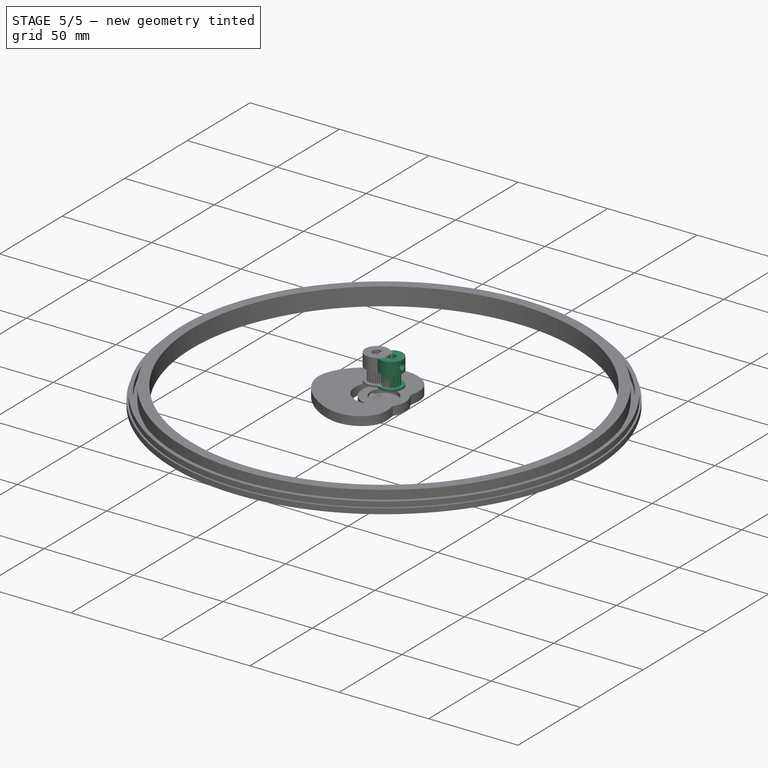
[diagram: stage 5 of 5 — iso view after this stage's code; geometry added in this stage tinted green]
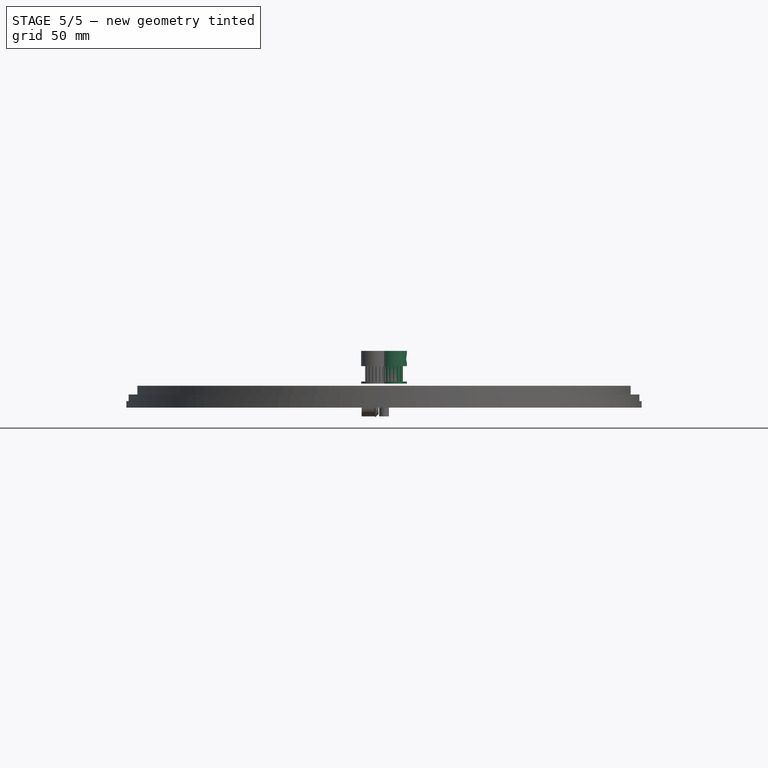
[diagram: stage 5 of 5 — front view after this stage's code; geometry added in this stage tinted green]
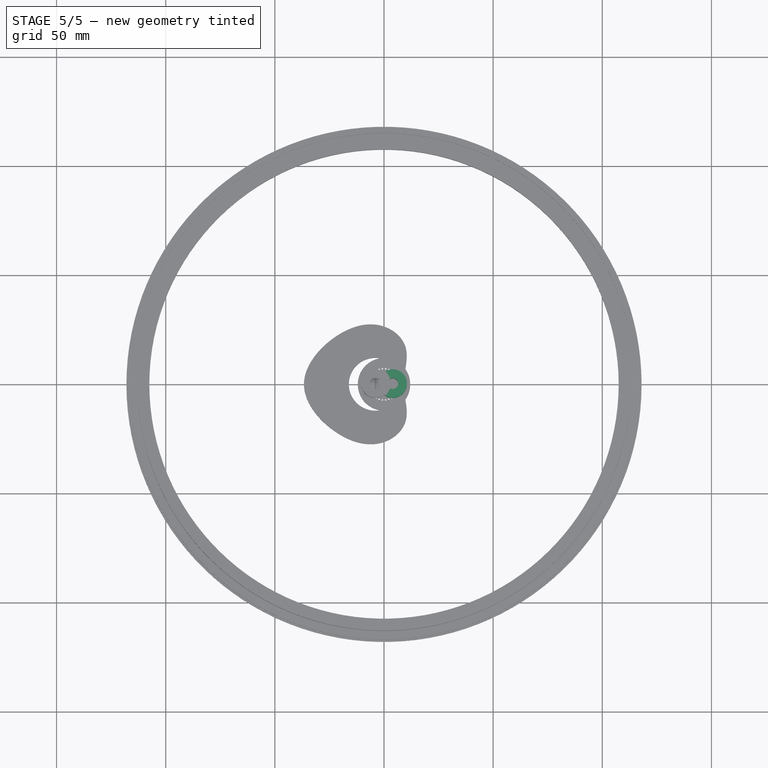
[diagram: stage 5 of 5 — top view after this stage's code; geometry added in this stage tinted green]
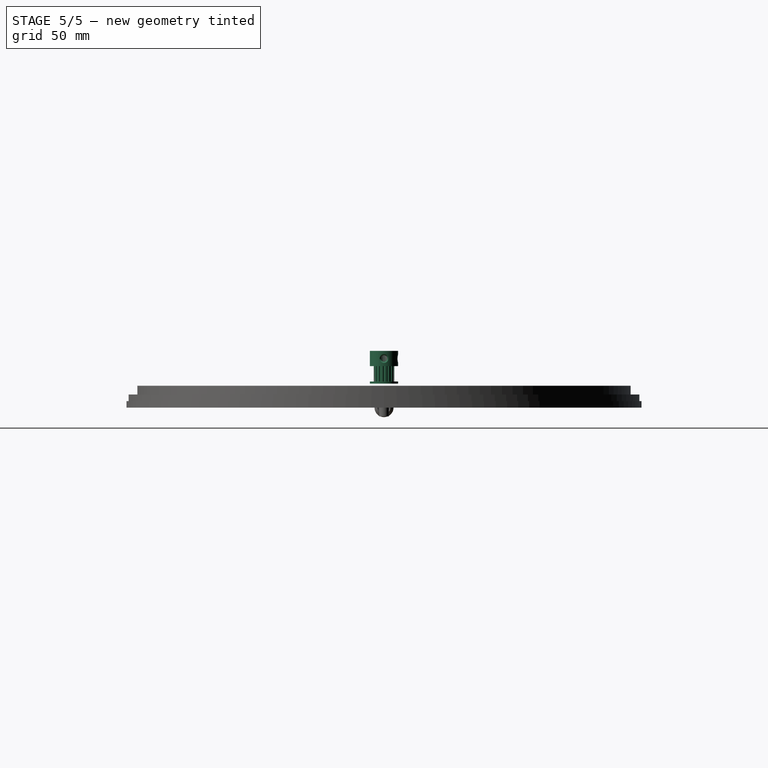
[diagram: stage 5 of 5 — right view after this stage's code; geometry added in this stage tinted green]
FEATURE [Sketcher::SketchObject] Sketch059
  FullyConstrained = true
  MapMode = 5
  Support = -> [XY_Plane053]
  sketch-geometry (2):
    g0: Circle CenterX=0 CenterY=0 CenterZ=0 NormalX=0 NormalY=0 NormalZ=1 AngleXU=0 Radius=3.5
    g1: Circle CenterX=0 CenterY=0 CenterZ=0 NormalX=0 NormalY=0 NormalZ=1 AngleXU=0 Radius=1.5
  constraints (4):
    c: Coincident(g0,g-1)
    c: Coincident(g1,g0)
    c: Diameter(g1) = 3  'dia_int·'
    c: Diameter(g0) = 7  'dia_ext'
FEATURE [PartDesign::Pad] Pad046
  Direction = (1,1,1)
  Length = 2.5
  Length2 = 100
  Profile = -> Sketch059
  Type = 0
FEATURE [PartDesign::Body] Body044  label="front_wheel"
  Group = -> [Sketch059,Pad046]
  Origin = -> Origin051
  Placement = pos=(4,14,13.5) rot=(0,0,1;0rad)
  Tip = -> Pad046
FEATURE [Sketcher::SketchObject] Sketch060
  FullyConstrained = true
  MapMode = 5
  Support = -> [XY_Plane054]
  sketch-geometry (2):
    g0: Circle CenterX=0 CenterY=0 CenterZ=0 NormalX=0 NormalY=0 NormalZ=1 AngleXU=0 Radius=3.5
    g1: Circle CenterX=0 CenterY=0 CenterZ=0 NormalX=0 NormalY=0 NormalZ=1 AngleXU=0 Radius=1.5
  constraints (4):
    c: Coincident(g0,g-1)
    c: Coincident(g1,g0)
    c: Diameter(g1) = 3  'dia_int·'
    c: Diameter(g0) = 7  'dia_ext'
FEATURE [PartDesign::Pad] Pad047
  Direction = (1,1,1)
  Length = 2.5
  Length2 = 100
  Profile = -> Sketch060
  Type = 0
FEATURE [Sketcher::SketchObject] Sketch001
  FullyConstrained = false
  MapMode = 5
  Placement = pos=(0,3.3e-15,15) rot=(0,0,1;3.14159rad)
  Support = -> [Revolution]
  sketch-geometry (1):
    g0: Circle CenterX=0 CenterY=0 CenterZ=0 NormalX=0 NormalY=0 NormalZ=1 AngleXU=0 Radius=2.5
  constraints (2):
    c: Coincident(g0,g-1)
    c: Radius(g0) = 2.5
FEATURE [PartDesign::Pocket] Pocket
  AllowMultiFace = false
  Length = 15
  Length2 = 100
  Placement = pos=(0,0,0) rot=(1,0,0;1.5708rad)
  Profile = -> Sketch001
  Type = 0
FEATURE [Part::Cut] Cut
  Base = -> Pocket
  Tool = -> Pad049
FEATURE [Part::Cut] Cut001
  Base = -> Cut
  Tool = -> Pad001
FEATURE [PartDesign::Chamfer] Chamfer
  Angle = 45
  Base = -> Cut001 [Edge11,Edge10,Edge8,Edge9,Edge4,Edge5]
  ChamferType = 0
  FlipDirection = false
  Size = 0.5
  Size2 = 1
  SupportTransform = false
FEATURE [PartDesign::Chamfer] Chamfer001
  Angle = 45
  Base = -> Chamfer [Edge22]
  ChamferType = 0
  FlipDirection = false
  Size = 0.5
  Size2 = 1
  SupportTransform = false
FEATURE [Part::Cut] Cut002  label="GT1_pulley"
  Base = -> Chamfer001
  Placement = pos=(4,0,26) rot=(1,0,0;3.14159rad)
  Tool = -> Pad002
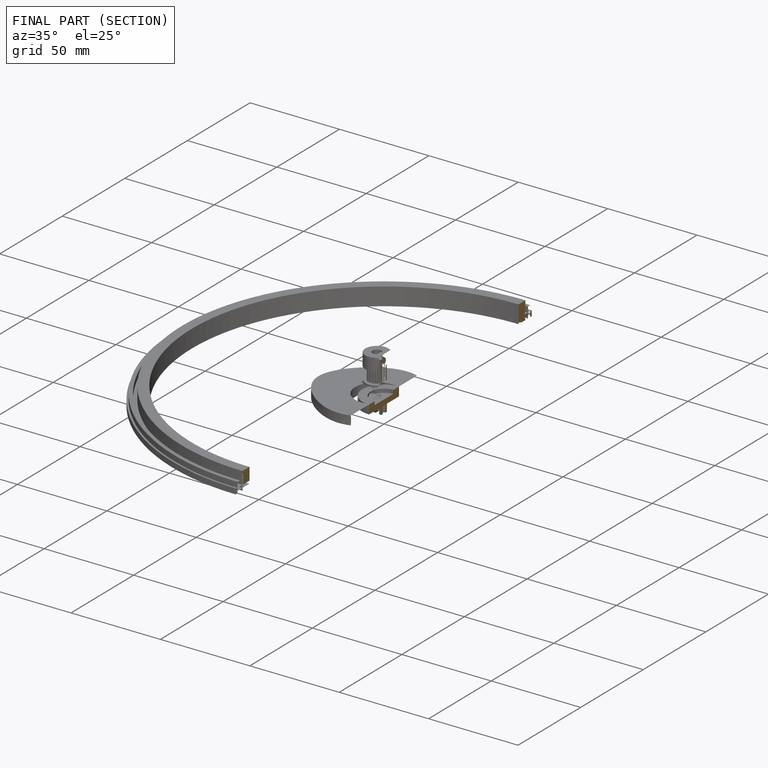
[diagram: finished part — half-section view (interior)]
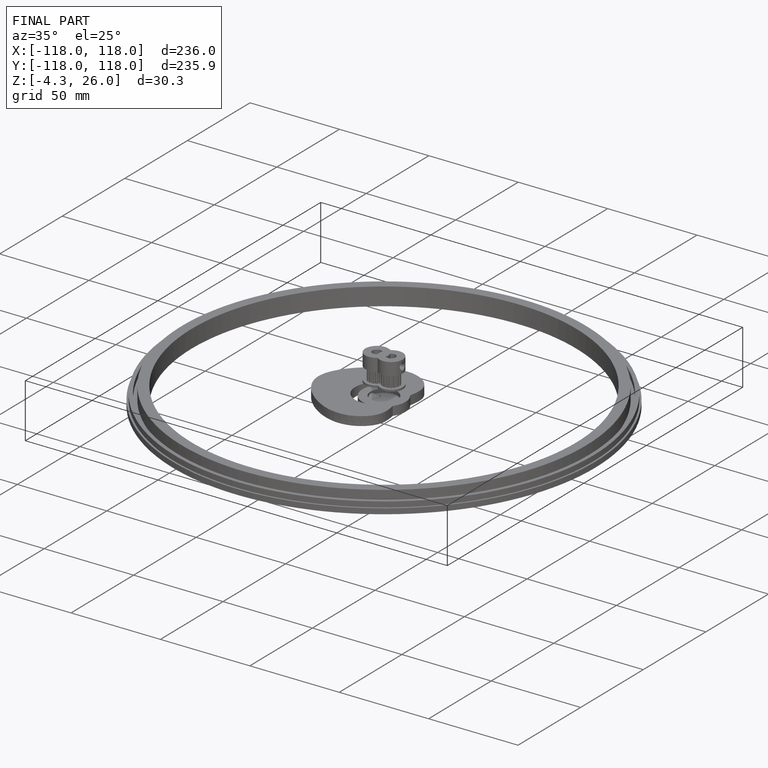
[diagram: finished part — iso view with bounding-box wireframe]
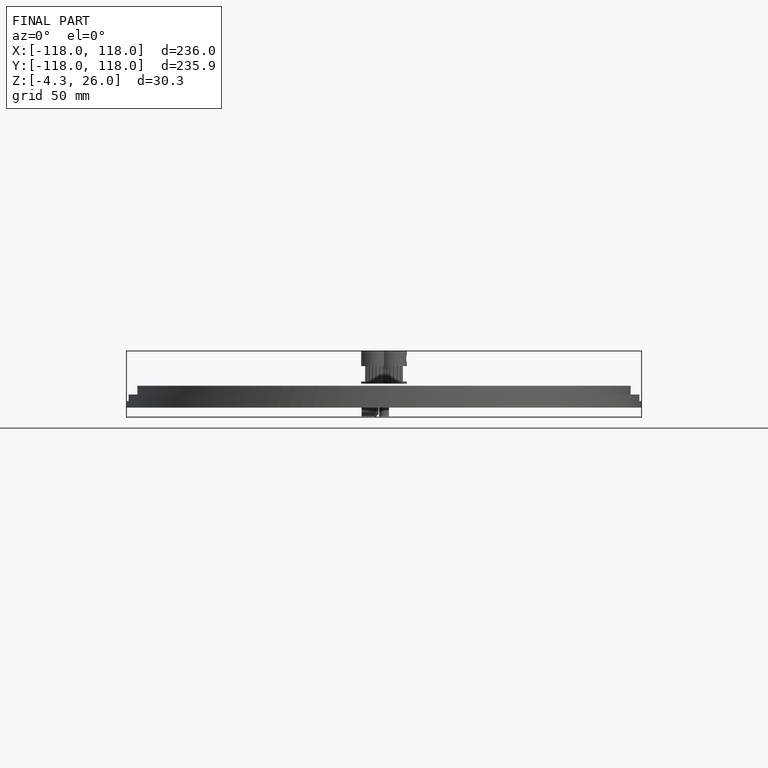
[diagram: finished part — front view with bounding-box wireframe]
